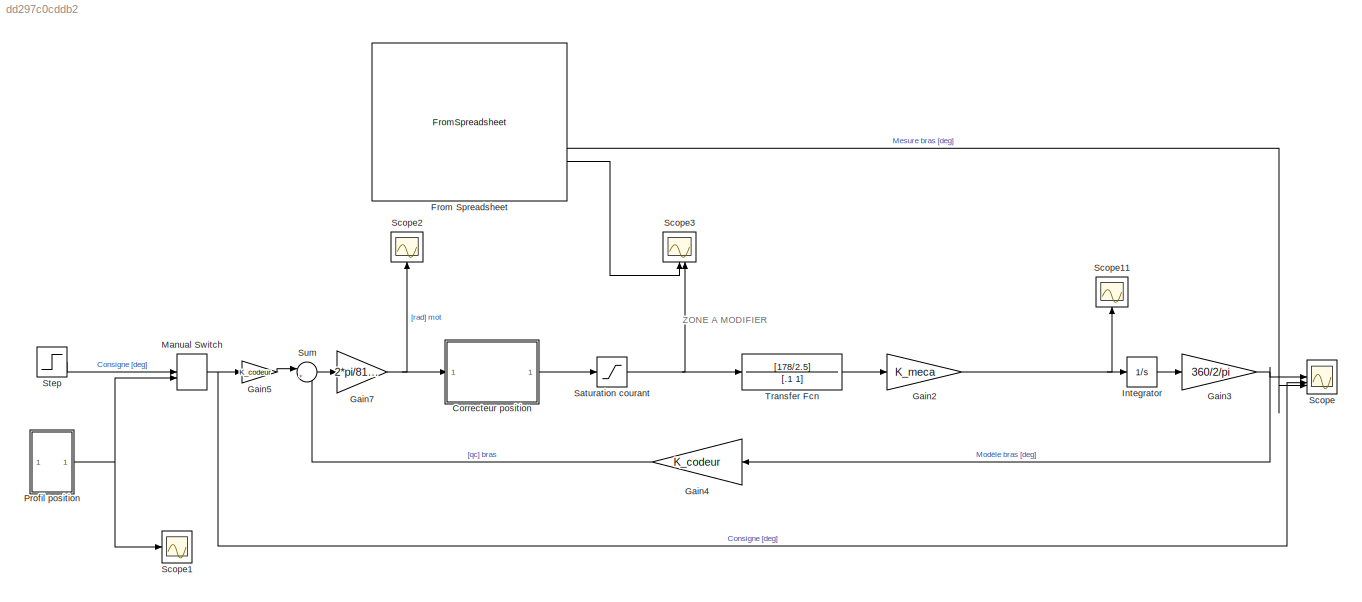
MODEL slx_dd297c0cddb2
KIND model
CONFIG AbsTol = auto
CONFIG EnableMultiTasking = off
CONFIG FixedStep = auto
CONFIG InitFcn = run('parametres.m')
CONFIG MaxStep = auto
CONFIG MinStep = auto
CONFIG RelTol = 1e-3
CONFIG SampleTimeConstraint = Unconstrained
CONFIG SolverName = VariableStepAuto
CONFIG StartTime = 0.0
CONFIG StopTime = 1
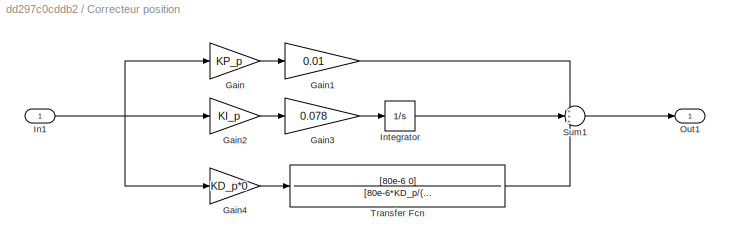
BLOCK [SubSystem] Correcteur position
BLOCK [Gain] Correcteur position/Gain
  Gain = KP_p
BLOCK [Gain] Correcteur position/Gain1
  Gain = 0.01
BLOCK [Gain] Correcteur position/Gain2
  Gain = KI_p
BLOCK [Gain] Correcteur position/Gain3
  Gain = 0.078
BLOCK [Gain] Correcteur position/Gain4
  Gain = KD_p*0
BLOCK [Inport] Correcteur position/In1
BLOCK [Integrator] Correcteur position/Integrator
BLOCK [Outport] Correcteur position/Out1
BLOCK [Sum] Correcteur position/Sum1
  Inputs = +++
BLOCK [TransferFcn] Correcteur position/Transfer Fcn
  Denominator = [80e-6*KD_p/(16*0.01*KP_p) 1]
  Numerator = [80e-6 0]
BLOCK [FromSpreadsheet] From Spreadsheet
  FileName = <path>
  Range = A1:D74
  SheetName = Echelon_10deg_I_H_KD_0
BLOCK [Gain] Gain2
  Gain = K_meca
BLOCK [Gain] Gain3
  Gain = 360/2/pi
BLOCK [Gain] Gain4
  Gain = K_codeur
  NameLocation = top
BLOCK [Gain] Gain5
  Gain = K_codeur
BLOCK [Gain] Gain7
  Gain = 2*pi/8192/K_meca
BLOCK [Integrator] Integrator
BLOCK [ManualSwitch] Manual Switch
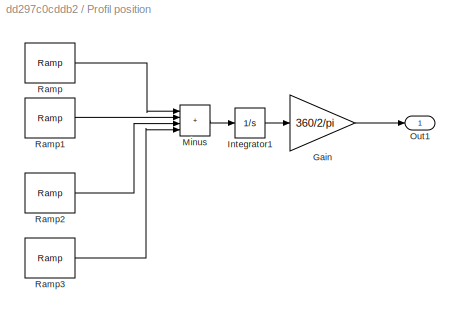
BLOCK [SubSystem] Profil position
BLOCK [Gain] Profil position/Gain
  Gain = 360/2/pi
BLOCK [Integrator] Profil position/Integrator1
BLOCK [Sum] Profil position/Minus
  IconShape = rectangular
  Inputs = ++++
BLOCK [Outport] Profil position/Out1
BLOCK [Reference] Profil position/Ramp  REF=simulink/Sources/Ramp
  SourceBlock = simulink/Sources/Ramp
  SourceType = Ramp
BLOCK [Reference] Profil position/Ramp1  REF=simulink/Sources/Ramp
  SourceBlock = simulink/Sources/Ramp
  SourceType = Ramp
BLOCK [Reference] Profil position/Ramp2  REF=simulink/Sources/Ramp
  SourceBlock = simulink/Sources/Ramp
  SourceType = Ramp
BLOCK [Reference] Profil position/Ramp3  REF=simulink/Sources/Ramp
  SourceBlock = simulink/Sources/Ramp
  SourceType = Ramp
BLOCK [Saturate] Saturation courant
  LowerLimit = -Imax
  UpperLimit = Imax
BLOCK [Scope] Scope
  Floating = off
  NumInputPorts = 3
  ScopeSpecificationString = Simulink.scopes.TimeScopeBlockCfg('CurrentConfiguration', extmgr.ConfigurationSet(extmgr.Configuration('Core','General UI',true),extmgr.Configuration('Core','Source UI',true),extmgr.Configuration('Sources','WiredSimulink',true),extmgr.Configuration('Visuals','Time Domain',true,'SerializedDisplays',{struct('MinYLimReal','-2.32089','MaxYLimReal','20.88803','YLabelReal','','MinYLimMag','0.00000','Max...<+1914ch>
BLOCK [Scope] Scope1
  Floating = off
  NumInputPorts = 1
  ScopeSpecificationString = Simulink.scopes.TimeScopeBlockCfg('CurrentConfiguration', extmgr.ConfigurationSet(extmgr.Configuration('Core','General UI',true),extmgr.Configuration('Core','Source UI',true),extmgr.Configuration('Sources','WiredSimulink',true,'DataLoggingVariableName','ScopeData1'),extmgr.Configuration('Visuals','Time Domain',true,'SerializedDisplays',{struct('MinYLimReal','-11.25','MaxYLimReal','101.25','YLabelR...<+1408ch>
BLOCK [Scope] Scope11
  Floating = off
  NameLocation = right
  NumInputPorts = 1
  ScopeSpecificationString = Simulink.scopes.TimeScopeBlockCfg('CurrentConfiguration', extmgr.ConfigurationSet(extmgr.Configuration('Core','General UI',true),extmgr.Configuration('Core','Source UI',true),extmgr.Configuration('Sources','WiredSimulink',true,'DataLoggingVariableName','ScopeData11'),extmgr.Configuration('Visuals','Time Domain',true,'SerializedDisplays',{struct('MinYLimReal','-0.71972','MaxYLimReal','2.47264','YLa...<+1496ch>
BLOCK [Scope] Scope2
  Floating = off
  NameLocation = right
  NumInputPorts = 1
  ScopeSpecificationString = Simulink.scopes.TimeScopeBlockCfg('CurrentConfiguration', extmgr.ConfigurationSet(extmgr.Configuration('Core','General UI',true),extmgr.Configuration('Core','Source UI',true),extmgr.Configuration('Sources','WiredSimulink',true,'DataLoggingVariableName','ScopeData2'),extmgr.Configuration('Visuals','Time Domain',true,'SerializedDisplays',{struct('MinYLimReal','-0.52962','MaxYLimReal','0.25277','YLab...<+1495ch>
BLOCK [Scope] Scope3
  Floating = off
  NameLocation = right
  NumInputPorts = 2
  ScopeSpecificationString = Simulink.scopes.TimeScopeBlockCfg('CurrentConfiguration', extmgr.ConfigurationSet(extmgr.Configuration('Core','General UI',true),extmgr.Configuration('Core','Source UI',true),extmgr.Configuration('Sources','WiredSimulink',true,'DataLoggingVariableName','ScopeData1'),extmgr.Configuration('Visuals','Time Domain',true,'SerializedDisplays',{struct('MinYLimReal','-5.375','MaxYLimReal','5.375','YLabelRe...<+1542ch>
BLOCK [Step] Step
  After = 10
  SampleTime = 0
  Time = 0
BLOCK [Sum] Sum
  Inputs = |+-
BLOCK [TransferFcn] Transfer Fcn
  Denominator = [.1 1]
  Numerator = [178/2.5]
ANNOTATION (root): ZONE A MODIFIER
LINE Correcteur position/Gain1:1 -> Correcteur position/Sum1:1
LINE Correcteur position/Gain2:1 -> Correcteur position/Gain3:1
LINE Correcteur position/Gain3:1 -> Correcteur position/Integrator:1
LINE Correcteur position/Gain4:1 -> Correcteur position/Transfer Fcn:1
LINE Correcteur position/Gain:1 -> Correcteur position/Gain1:1
NET Correcteur position/In1:1 -> Correcteur position/Gain2:1, Correcteur position/Gain4:1, Correcteur position/Gain:1
LINE Correcteur position/Integrator:1 -> Correcteur position/Sum1:2
LINE Correcteur position/Sum1:1 -> Correcteur position/Out1:1
LINE Correcteur position/Transfer Fcn:1 -> Correcteur position/Sum1:3
LINE Correcteur position:1 -> Saturation courant:1
LINE From Spreadsheet:2 -> Scope:3
LINE From Spreadsheet:3 -> Scope3:1
NET Gain2:1 -> Integrator:1, Scope11:1
NET Gain3:1 -> Gain4:1, Scope:1
LINE Gain4:1 -> Sum:2
LINE Gain5:1 -> Sum:1
NET Gain7:1 -> Correcteur position:1, Scope2:1
LINE Integrator:1 -> Gain3:1
NET Manual Switch:1 -> Gain5:1, Scope:2
LINE Profil position/Gain:1 -> Profil position/Out1:1
LINE Profil position/Integrator1:1 -> Profil position/Gain:1
LINE Profil position/Minus:1 -> Profil position/Integrator1:1
LINE Profil position/Ramp1:1 -> Profil position/Minus:2
LINE Profil position/Ramp2:1 -> Profil position/Minus:3
LINE Profil position/Ramp3:1 -> Profil position/Minus:4
LINE Profil position/Ramp:1 -> Profil position/Minus:1
NET Profil position:1 -> Manual Switch:2, Scope1:1
NET Saturation courant:1 -> Scope3:2, Transfer Fcn:1
LINE Step:1 -> Manual Switch:1
LINE Sum:1 -> Gain7:1
LINE Transfer Fcn:1 -> Gain2:1
note: NET lines group one-source signal fan-out (src -> all destinations, sorted); 1:1 wires keep LINE
note: 1 file-system path scrubbed to <path> (not preserved elsewhere — flat text is the only slx artifact)
